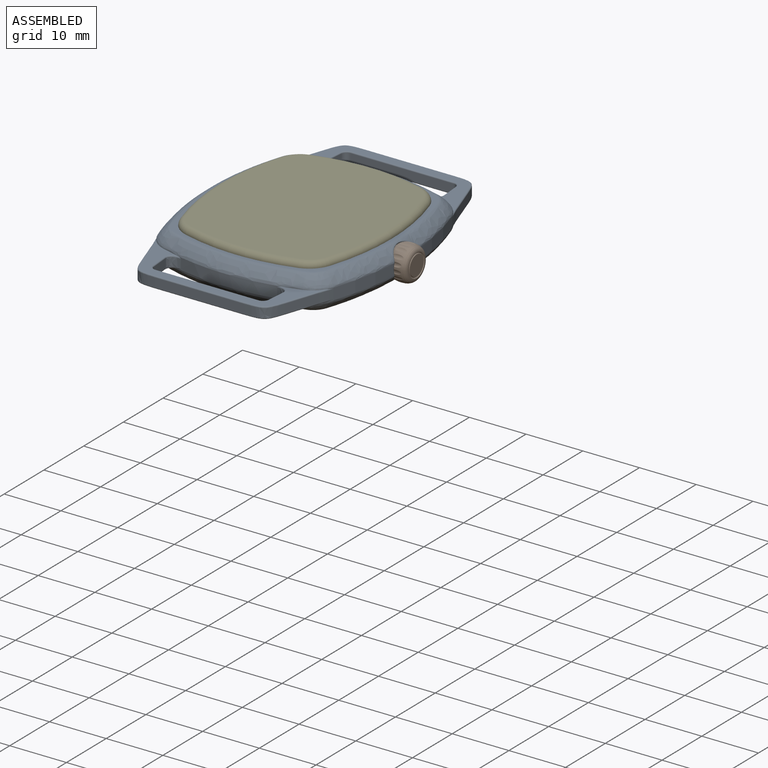
[diagram: assembled view]
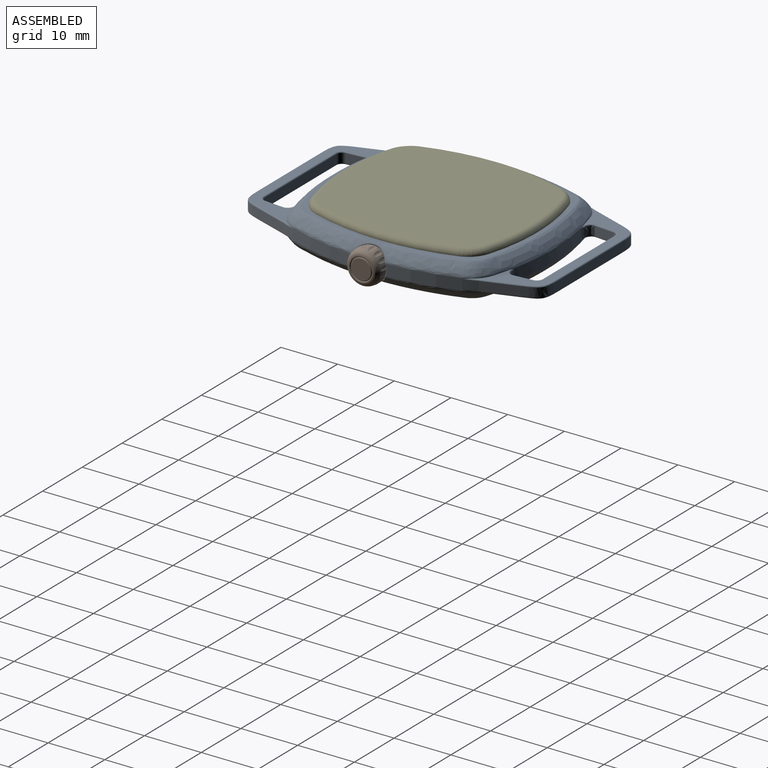
[diagram: assembled view, second angle]
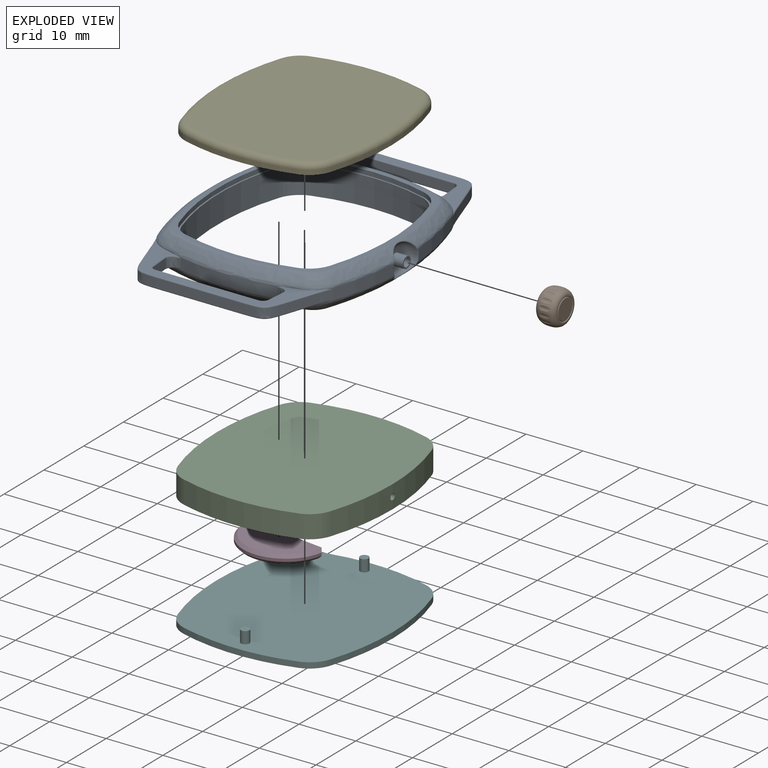
[diagram: exploded view]
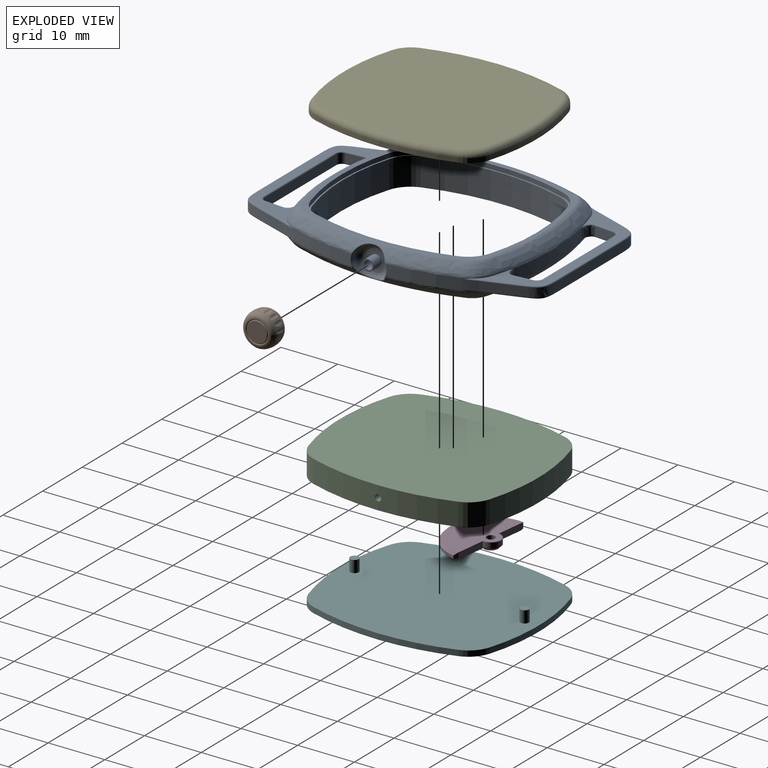
[diagram: exploded view, second angle]
ASSEMBLY  parts=6 mates=5
PART A: 142 faces, bbox 36x53x6 mm
  f0: cylinder r=40mm len=24.66mm, axis (0,0,-1), area 5mm2, adj f4,f5,f121,f133
  f1: cylinder r=34mm len=19.45mm, axis (0,0,-1), area 3.9mm2, adj f4,f7,f121,f133
  f2: cylinder r=34mm len=19.45mm, axis (0,0,-1), area 3.9mm2, adj f5,f6,f121,f133
  f3: cylinder r=40mm len=24.66mm, axis (0,0,-1), area 5mm2, adj f6,f7,f121,f133
  f4: cylinder r=5mm len=3.33mm, axis (0,0,1), area 1mm2, adj f0,f1,f121,f133
  f5: cylinder r=5mm len=3.33mm, axis (0,0,1), area 1mm2, adj f0,f2,f121,f133
  f6: cylinder r=5mm len=3.33mm, axis (0,0,1), area 1mm2, adj f2,f3,f121,f133
  f7: cylinder r=5mm len=3.33mm, axis (0,0,1), area 1mm2, adj f1,f3,f121,f133
  f8: cylinder r=46mm len=14.12mm, axis (0,0,-1), area 27.9mm2, adj f10,f11,f19,f38,f45,f68,f101,f141
  f9: cylinder r=46mm len=14.12mm, axis (0,0,-1), area 27.9mm2, adj f10,f11,f31,f37,f44,f82,f89,f138
  f10: bspline ~29.84x4.38mm, area 75.3mm2, adj f8,f9,f16,f37,f38,f139
  f11: bspline ~29.84x4.38mm, area 75.3mm2, adj f8,f9,f12,f44,f45,f140
  f12: plane 36.02x32.02mm, normal (0,0,-1), area 66.4mm2, adj f11,f44,f45,f46,f47,f48,f49,f50
  f13: cylinder r=40mm len=18.37mm, axis (0,0,-1), area 34.5mm2, adj f26,f30,f39,f46,f103,f107,f110,f114
  f14: cylinder r=40mm len=18.37mm, axis (0,0,-1), area 34.5mm2, adj f20,f24,f40,f47,f61,f65,f75,f79
  f15: cylinder r=46mm len=34.44mm, axis (0,0,-1), area 68.6mm2, adj f17,f33,f41,f42,f43,f48,f49,f50
  f16: plane 36.02x32.02mm, normal (0,0,1), area 95.3mm2, adj f10,f37,f38,f39,f40,f41,f42,f43
  f17: plane 5.89x2mm, normal (-0.95,-0.32,0), area 10mm2, adj f15,f58,f74,f97
  f18: plane 15.84x1.6mm, normal (0,-1,0), area 25.3mm2, adj f57,f58,f71,f99
  f19: plane 5.89x2mm, normal (0.95,-0.32,0), area 10mm2, adj f8,f57,f69,f102
  f20: extruded ~1.86x1.6mm, area 3.9mm2, adj f14,f21,f65,f79
  f21: plane 3.35x1.6mm, normal (-1,0.08,0), area 5.4mm2, adj f20,f56,f67,f81
  f22: plane 18.16x1.6mm, normal (0,1,0), area 29.1mm2, adj f55,f56,f64,f78
  f23: plane 3.35x1.6mm, normal (1,0.08,0), area 5.4mm2, adj f24,f55,f62,f76
  f24: extruded ~1.86x1.6mm, area 3.9mm2, adj f14,f23,f61,f75
  f25: plane 29.76x10.12mm, normal (0,0,1), area 73.3mm2, adj f38,f40,f42,f61,f62,f63,f64,f65
  f26: extruded ~1.86x1.6mm, area 3.9mm2, adj f13,f27,f103,f110
  f27: plane 3.35x1.6mm, normal (1,-0.08,0), area 5.4mm2, adj f26,f53,f104,f111
  f28: plane 18.16x1.6mm, normal (0,-1,0), area 29.1mm2, adj f53,f54,f106,f113
  f29: plane 3.35x1.6mm, normal (-1,-0.08,0), area 5.4mm2, adj f30,f54,f109,f116
  f30: extruded ~1.86x1.6mm, area 3.9mm2, adj f13,f29,f107,f114
  f31: plane 5.89x2mm, normal (0.95,0.32,0), area 10mm2, adj f9,f59,f83,f90
  f32: plane 15.84x1.6mm, normal (0,1,0), area 25.3mm2, adj f59,f60,f85,f92
  f33: plane 5.89x2mm, normal (-0.95,0.32,0), area 10mm2, adj f15,f60,f88,f95
  f34: plane 29.76x10.12mm, normal (0,0,1), area 73.3mm2, adj f37,f39,f41,f82,f83,f84,f85,f86
  f35: plane 29.76x10.12mm, normal (0,0,-1), area 73.3mm2, adj f44,f46,f48,f89,f90,f91,f92,f93
  f36: plane 29.76x10.12mm, normal (0,0,-1), area 73.3mm2, adj f45,f47,f49,f68,f69,f70,f71,f72
  f37: bspline ~3.81x3.78mm, area 11.4mm2, adj f9,f10,f16,f34,f39,f82
  f38: bspline ~3.81x3.78mm, area 11.4mm2, adj f8,f10,f16,f25,f40,f101
  f39: bspline ~24.65x3.85mm, area 71.8mm2, adj f13,f16,f34,f37,f41
  f40: bspline ~24.65x3.85mm, area 71.8mm2, adj f14,f16,f25,f38,f42
  f41: bspline ~3.81x3.78mm, area 11.4mm2, adj f15,f16,f34,f39,f43,f87
  f42: bspline ~3.81x3.78mm, area 11.4mm2, adj f15,f16,f25,f40,f43,f96
  f43: bspline ~29.84x4.38mm, area 87.3mm2, adj f15,f16,f41,f42
  f44: bspline ~3.81x3.78mm, area 11.4mm2, adj f9,f11,f12,f35,f46,f89
  f45: bspline ~3.81x3.78mm, area 11.4mm2, adj f8,f11,f12,f36,f47,f68
  f46: bspline ~24.65x3.85mm, area 71.8mm2, adj f12,f13,f35,f44,f48
  f47: bspline ~24.65x3.85mm, area 71.8mm2, adj f12,f14,f36,f45,f49
  f48: bspline ~3.81x3.78mm, area 11.4mm2, adj f12,f15,f35,f46,f50,f94
  f49: bspline ~3.81x3.78mm, area 11.4mm2, adj f12,f15,f36,f47,f50,f73
  f50: bspline ~29.84x4.38mm, area 87.3mm2, adj f12,f15,f48,f49
  f51: plane 3x3mm, normal (1,0,0), area 3.9mm2, adj f52,f127
  f52: revolved ~5.96x5.96mm, area 26.3mm2, adj f51,f138,f139,f140,f141
  f53: cylinder r=1mm len=1.6mm, axis (0,0,1), area 2.4mm2, adj f27,f28,f105,f112
  f54: cylinder r=1mm len=1.6mm, axis (0,0,1), area 2.4mm2, adj f28,f29,f108,f115
  f55: cylinder r=1mm len=1.6mm, axis (0,0,1), area 2.4mm2, adj f22,f23,f63,f77
  f56: cylinder r=1mm len=1.6mm, axis (0,0,-1), area 2.4mm2, adj f21,f22,f66,f80
  f57: bspline ~4.73x3.39mm, area 10.6mm2, adj f18,f19,f70,f100
  f58: bspline ~4.73x3.39mm, area 10.6mm2, adj f17,f18,f72,f98
  f59: bspline ~4.73x3.39mm, area 10.6mm2, adj f31,f32,f84,f91
  f60: bspline ~4.73x3.39mm, area 10.6mm2, adj f32,f33,f86,f93
  f61: bspline ~2.49x1.42mm, area 0.7mm2, adj f14,f24,f25,f62
  f62: cylinder r=0.2mm len=3.38mm, axis (0.08,-1,0), area 1.1mm2, adj f23,f25,f61,f63
  f63: torus R=1.2mm, axis (0,0,1), area 0.5mm2, adj f25,f55,f62,f64
  f64: cylinder r=0.2mm len=18.16mm, axis (1,0,0), area 5.7mm2, adj f22,f25,f63,f66
  f65: bspline ~2.49x1.42mm, area 0.7mm2, adj f14,f20,f25,f67
  f66: torus R=1.2mm, axis (0,0,1), area 0.5mm2, adj f25,f56,f64,f67
  f67: cylinder r=0.2mm len=3.38mm, axis (0.08,1,0), area 1.1mm2, adj f21,f25,f65,f66
  f68: torus R=45.8mm, axis (0,0,1), area 0.5mm2, adj f8,f36,f45,f69
  f69: cylinder r=0.2mm len=5.96mm, axis (0.32,0.95,0), area 2mm2, adj f19,f36,f68,f70
  f70: bspline ~7.45x5.4mm, area 2mm2, adj f36,f57,f69,f71
  f71: cylinder r=0.2mm len=15.84mm, axis (1,0,0), area 5mm2, adj f18,f36,f70,f72
  f72: bspline ~7.45x5.4mm, area 2mm2, adj f36,f58,f71,f74
  f73: torus R=45.8mm, axis (0,0,1), area 0.5mm2, adj f15,f36,f49,f74
  f74: cylinder r=0.2mm len=5.96mm, axis (0.32,-0.95,0), area 2mm2, adj f17,f36,f72,f73
  f75: bspline ~2.49x1.42mm, area 0.7mm2, adj f14,f24,f36,f76
  f76: cylinder r=0.2mm len=3.38mm, axis (-0.08,1,0), area 1.1mm2, adj f23,f36,f75,f77
  f77: torus R=1.2mm, axis (0,0,1), area 0.5mm2, adj f36,f55,f76,f78
  f78: cylinder r=0.2mm len=18.16mm, axis (-1,0,0), area 5.7mm2, adj f22,f36,f77,f80
  f79: bspline ~2.49x1.42mm, area 0.7mm2, adj f14,f20,f36,f81
  f80: torus R=1.2mm, axis (0,0,1), area 0.5mm2, adj f36,f56,f78,f81
  f81: cylinder r=0.2mm len=3.38mm, axis (-0.08,-1,0), area 1.1mm2, adj f21,f36,f79,f80
  f82: torus R=45.8mm, axis (0,0,1), area 0.5mm2, adj f9,f34,f37,f83
  f83: cylinder r=0.2mm len=5.96mm, axis (0.32,-0.95,0), area 2mm2, adj f31,f34,f82,f84
  f84: bspline ~7.45x5.4mm, area 2mm2, adj f34,f59,f83,f85
  f85: cylinder r=0.2mm len=15.84mm, axis (1,0,0), area 5mm2, adj f32,f34,f84,f86
  f86: bspline ~7.45x5.4mm, area 2mm2, adj f34,f60,f85,f88
  f87: torus R=45.8mm, axis (0,0,1), area 0.5mm2, adj f15,f34,f41,f88
  f88: cylinder r=0.2mm len=5.96mm, axis (0.32,0.95,0), area 2mm2, adj f33,f34,f86,f87
  f89: torus R=45.8mm, axis (0,0,1), area 0.5mm2, adj f9,f35,f44,f90
  f90: cylinder r=0.2mm len=5.96mm, axis (-0.32,0.95,0), area 2mm2, adj f31,f35,f89,f91
  f91: bspline ~7.45x5.4mm, area 2mm2, adj f35,f59,f90,f92
  f92: cylinder r=0.2mm len=15.84mm, axis (-1,0,0), area 5mm2, adj f32,f35,f91,f93
  f93: bspline ~7.45x5.4mm, area 2mm2, adj f35,f60,f92,f95
  f94: torus R=45.8mm, axis (0,0,1), area 0.5mm2, adj f15,f35,f48,f95
  f95: cylinder r=0.2mm len=5.96mm, axis (-0.32,-0.95,0), area 2mm2, adj f33,f35,f93,f94
  f96: torus R=45.8mm, axis (0,0,1), area 0.5mm2, adj f15,f25,f42,f97
  f97: cylinder r=0.2mm len=5.96mm, axis (-0.32,0.95,0), area 2mm2, adj f17,f25,f96,f98
  f98: bspline ~7.45x5.4mm, area 2mm2, adj f25,f58,f97,f99
  f99: cylinder r=0.2mm len=15.84mm, axis (-1,0,0), area 5mm2, adj f18,f25,f98,f100
  f100: bspline ~7.45x5.4mm, area 2mm2, adj f25,f57,f99,f102
  f101: torus R=45.8mm, axis (0,0,1), area 0.5mm2, adj f8,f25,f38,f102
  f102: cylinder r=0.2mm len=5.96mm, axis (-0.32,-0.95,0), area 2mm2, adj f19,f25,f100,f101
  f103: bspline ~2.49x1.42mm, area 0.7mm2, adj f13,f26,f34,f104
  f104: cylinder r=0.2mm len=3.38mm, axis (-0.08,-1,0), area 1.1mm2, adj f27,f34,f103,f105
  f105: torus R=1.2mm, axis (0,0,1), area 0.5mm2, adj f34,f53,f104,f106
  f106: cylinder r=0.2mm len=18.16mm, axis (-1,0,0), area 5.7mm2, adj f28,f34,f105,f108
  f107: bspline ~2.49x1.42mm, area 0.7mm2, adj f13,f30,f34,f109
  f108: torus R=1.2mm, axis (0,0,1), area 0.5mm2, adj f34,f54,f106,f109
  f109: cylinder r=0.2mm len=3.38mm, axis (-0.08,1,0), area 1.1mm2, adj f29,f34,f107,f108
  f110: bspline ~2.49x1.42mm, area 0.7mm2, adj f13,f26,f35,f111
  f111: cylinder r=0.2mm len=3.38mm, axis (0.08,1,0), area 1.1mm2, adj f27,f35,f110,f112
  f112: torus R=1.2mm, axis (0,0,1), area 0.5mm2, adj f35,f53,f111,f113
  f113: cylinder r=0.2mm len=18.16mm, axis (1,0,0), area 5.7mm2, adj f28,f35,f112,f115
  f114: bspline ~2.49x1.42mm, area 0.7mm2, adj f13,f30,f35,f116
  f115: torus R=1.2mm, axis (0,0,1), area 0.5mm2, adj f35,f54,f113,f116
  f116: cylinder r=0.2mm len=3.38mm, axis (0.08,-1,0), area 1.1mm2, adj f29,f35,f114,f115
  f117: cylinder r=40.5mm len=25.09mm, axis (0,0,1), area 20.4mm2, adj f16,f121,f122,f125
  f118: cylinder r=34.5mm len=19.89mm, axis (0,0,1), area 16.1mm2, adj f16,f121,f122,f123
  f119: cylinder r=40.5mm len=25.09mm, axis (0,0,1), area 20.4mm2, adj f16,f121,f123,f124
  f120: cylinder r=34.5mm len=19.89mm, axis (0,0,1), area 16.1mm2, adj f16,f121,f124,f125
  f121: plane 34.5x30.5mm, normal (0,0,1), area 28.4mm2, adj f0,f1,f2,f3,f4,f5,f6,f7
  f122: cylinder r=5mm len=3.31mm, axis (0,0,-1), area 3.9mm2, adj f16,f117,f118,f121
  f123: cylinder r=5mm len=3.31mm, axis (0,0,-1), area 3.9mm2, adj f16,f118,f119,f121
  f124: cylinder r=5mm len=3.31mm, axis (0,0,-1), area 3.9mm2, adj f16,f119,f120,f121
  f125: cylinder r=5mm len=3.31mm, axis (0,0,-1), area 3.9mm2, adj f16,f117,f120,f121
  f126: cylinder r=0.75mm len=2.5mm, axis (-1,0,0), area 11.8mm2, adj f128,f132
  f127: cylinder r=1mm len=2mm, axis (-1,0,0), area 12.6mm2, adj f51,f128
  f128: plane 2x2mm, normal (1,0,0), area 1.4mm2, adj f126,f127
  f129: cylinder r=35mm len=20.33mm, axis (0,0,-1), area 103.1mm2, adj f12,f133,f134,f137
  f130: cylinder r=41mm len=25.53mm, axis (0,0,-1), area 129.8mm2, adj f12,f133,f134,f135
  f131: cylinder r=35mm len=20.33mm, axis (0,0,-1), area 103.1mm2, adj f12,f133,f135,f136
  f132: cylinder r=41mm len=25.53mm, axis (0,0,-1), area 128mm2, adj f12,f126,f133,f136,f137
  f133: plane 35x31mm, normal (0,0,-1), area 57.3mm2, adj f0,f1,f2,f3,f4,f5,f6,f7
  f134: cylinder r=5mm len=5mm, axis (0,0,1), area 24mm2, adj f12,f129,f130,f133
  f135: cylinder r=5mm len=5mm, axis (0,0,1), area 24mm2, adj f12,f130,f131,f133
  f136: cylinder r=5mm len=5mm, axis (0,0,1), area 24mm2, adj f12,f131,f132,f133
  f137: cylinder r=5mm len=5mm, axis (0,0,1), area 24mm2, adj f12,f129,f132,f133
  f138: bspline ~2x0.47mm, area 0.8mm2, adj f9,f52,f139,f140
  f139: bspline ~6.19x1.98mm, area 4.1mm2, adj f10,f52,f138,f141
  f140: bspline ~6.19x1.98mm, area 4.1mm2, adj f11,f52,f138,f141
  f141: bspline ~2x0.47mm, area 0.8mm2, adj f8,f52,f139,f140
PART B: 25 faces, bbox 3.8x6x6 mm
  f0: revolved ~5.98x5.98mm, area 35.8mm2, adj f1,f2,f8,f9,f10,f11,f12,f13
  f1: revolved ~5.98x5.98mm, area 28.7mm2, adj f0,f8,f9,f10,f11,f12,f13,f14
  f2: plane 3x3mm, normal (-1,0,0), area 3.9mm2, adj f0,f3
  f3: cylinder r=1mm len=2mm, axis (-1,0,0), area 12.6mm2, adj f2,f4
  f4: plane 2x2mm, normal (-1,0,0), area 2.5mm2, adj f3,f5
  f5: cylinder r=0.45mm len=0.9mm, axis (-1,0,0), area 1.4mm2, adj f4,f6
  f6: plane 0.9x0.9mm, normal (-1,0,0), area 0.6mm2, adj f5
  f7: plane 3.5x3.5mm, normal (1,0,0), area 9.6mm2, adj f24
  f8: cylinder r=0.73mm len=2.01mm, axis (-1,0,0), area 1.3mm2, adj f0,f1
  f9: cylinder r=0.73mm len=2.01mm, axis (-1,0,0), area 1.3mm2, adj f0,f1
  f10: cylinder r=0.73mm len=2.01mm, axis (-1,0,0), area 1.3mm2, adj f0,f1
  f11: cylinder r=0.73mm len=2.01mm, axis (-1,0,0), area 1.3mm2, adj f0,f1
  f12: cylinder r=0.73mm len=2.01mm, axis (-1,0,0), area 1.3mm2, adj f0,f1
  f13: cylinder r=0.73mm len=2.01mm, axis (-1,0,0), area 1.3mm2, adj f0,f1
  f14: cylinder r=0.73mm len=2.01mm, axis (-1,0,0), area 1.3mm2, adj f0,f1
  f15: cylinder r=0.73mm len=2.01mm, axis (-1,0,0), area 1.3mm2, adj f0,f1
  f16: cylinder r=0.73mm len=2.01mm, axis (-1,0,0), area 1.3mm2, adj f0,f1
  f17: cylinder r=0.73mm len=2.01mm, axis (-1,0,0), area 1.3mm2, adj f0,f1
  f18: cylinder r=0.73mm len=2.01mm, axis (-1,0,0), area 1.3mm2, adj f0,f1
  f19: cylinder r=0.73mm len=2.01mm, axis (-1,0,0), area 1.3mm2, adj f0,f1
  f20: cylinder r=0.73mm len=2.01mm, axis (-1,0,0), area 1.3mm2, adj f0,f1
  f21: cylinder r=0.73mm len=2.01mm, axis (-1,0,0), area 1.3mm2, adj f0,f1
  f22: cylinder r=0.73mm len=2.01mm, axis (-1,0,0), area 1.3mm2, adj f0,f1
  f23: cylinder r=0.73mm len=2.01mm, axis (-1,0,0), area 1.3mm2, adj f0,f1
  f24: torus R=1.88mm, axis (1,0,0), area 4.6mm2, adj f1,f7
PART C: 21 faces, bbox 31x35x4 mm
  f0: cylinder r=41mm len=25.53mm, axis (0,0,-1), area 103.8mm2, adj f4,f5,f6,f9
  f1: cylinder r=35mm len=20.33mm, axis (0,0,-1), area 82.5mm2, adj f4,f5,f6,f7
  f2: cylinder r=41mm len=25.53mm, axis (0,0,-1), area 102.9mm2, adj f4,f5,f7,f8,f10
  f3: cylinder r=35mm len=20.33mm, axis (0,0,-1), area 82.5mm2, adj f4,f5,f8,f9
  f4: plane 35x31mm, normal (0,0,1), area 957.7mm2, adj f0,f1,f2,f3,f6,f7,f8,f9
  f5: plane 35x31mm, normal (0,0,-1), area 753.1mm2, adj f0,f1,f2,f3,f6,f7,f8,f9
  f6: cylinder r=5mm len=4mm, axis (0,0,-1), area 19.2mm2, adj f0,f1,f4,f5
  f7: cylinder r=5mm len=4mm, axis (0,0,-1), area 19.2mm2, adj f1,f2,f4,f5
  f8: cylinder r=5mm len=4mm, axis (0,0,-1), area 19.2mm2, adj f2,f3,f4,f5
  f9: cylinder r=5mm len=4mm, axis (0,0,-1), area 19.2mm2, adj f0,f3,f4,f5
  f10: cylinder r=0.55mm len=15.5mm, axis (1,0,0), area 53.6mm2, adj f2,f11
  f11: plane 1.1x1.1mm, normal (1,0,0), area 1mm2, adj f10
  f12: cylinder r=0.75mm len=2.1mm, axis (0,0,-1), area 9.9mm2, adj f5,f13
  f13: plane 1.5x1.5mm, normal (0,0,-1), area 1.8mm2, adj f12
  f14: cylinder r=0.75mm len=2.1mm, axis (0,0,-1), area 9.9mm2, adj f5,f15
  f15: plane 1.5x1.5mm, normal (0,0,-1), area 1.8mm2, adj f14
  f16: cylinder r=0.75mm len=2.5mm, axis (0,0,-1), area 11.8mm2, adj f18,f19
  f17: cylinder r=7.5mm len=15mm, axis (0,0,-1), area 94.2mm2, adj f18,f20
  f18: plane 15x15mm, normal (0,0,-1), area 174.9mm2, adj f16,f17
  f19: plane 1.5x1.5mm, normal (0,0,-1), area 1.8mm2, adj f16
  f20: cone r=7.5mm half-angle=45deg, axis (0,0,-1), area 34.4mm2, adj f5,f17
PART D: 16 faces, bbox 15.1x9.3x1.6 mm
  f0: cylinder r=1.75mm len=3.5mm, axis (0,0,-1), area 5.5mm2, adj f1,f4,f5,f7
  f1: plane 5.23x1mm, normal (0,1,0), area 5.2mm2, adj f0,f5,f8,f13
  f2: cylinder r=7.5mm len=14.96mm, axis (0,0,-1), area 11.2mm2, adj f10,f13,f14,f15
  f3: cylinder r=0.75mm len=1.5mm, axis (0,0,-1), area 7.1mm2, adj f5,f6
  f4: plane 5.23x1mm, normal (0,1,0), area 5.2mm2, adj f0,f5,f9,f14
  f5: plane 14x8.75mm, normal (0,0,1), area 80mm2, adj f0,f1,f3,f4,f13,f14,f15
  f6: plane 13.96x8.25mm, normal (0,0,-1), area 71.9mm2, adj f3,f7,f8,f9,f10
  f7: cone r=1.75mm half-angle=45deg, axis (0,0,1), area 3.7mm2, adj f0,f6,f8,f9
  f8: plane 5.93x0.59mm, normal (0,0.71,-0.71), area 3.9mm2, adj f1,f6,f7,f11
  f9: plane 5.93x0.59mm, normal (0,0.71,-0.71), area 3.9mm2, adj f4,f6,f7,f12
  f10: cone r=7.5mm half-angle=45deg, axis (0,0,1), area 15.4mm2, adj f2,f6,f11,f12
  f11: plane 0.54x0.5mm, normal (-0.6,0.56,-0.56), area 0.2mm2, adj f8,f10,f13
  f12: plane 0.54x0.5mm, normal (0.6,0.56,-0.56), area 0.2mm2, adj f9,f10,f14
  f13: plane 1.02x0.56mm, normal (-0.73,0.68,0), area 0.6mm2, adj f1,f2,f5,f11,f15
  f14: plane 1.02x0.56mm, normal (0.73,0.68,0), area 0.6mm2, adj f2,f4,f5,f12,f15
  f15: cone r=7mm half-angle=45deg, axis (0,0,-1), area 15.7mm2, adj f2,f5,f13,f14
PART E: 18 faces, bbox 37.2x40.2x1.8 mm
  f0: cylinder r=40.5mm len=25.09mm, axis (0,0,-1), area 20.4mm2, adj f5,f6,f9,f10
  f1: cylinder r=34.5mm len=19.89mm, axis (0,0,-1), area 16.1mm2, adj f5,f6,f7,f13
  f2: cylinder r=40.5mm len=25.09mm, axis (0,0,-1), area 20.4mm2, adj f5,f7,f8,f17
  f3: cylinder r=34.5mm len=19.89mm, axis (0,0,-1), area 16.1mm2, adj f5,f8,f9,f14
  f4: plane 32.5x28.5mm, normal (0,0,1), area 821.3mm2, adj f10,f11,f12,f13,f14,f15,f16,f17
  f5: plane 34.5x30.5mm, normal (0,0,-1), area 928.8mm2, adj f0,f1,f2,f3,f6,f7,f8,f9
  f6: cylinder r=5mm len=3.31mm, axis (0,0,-1), area 3.9mm2, adj f0,f1,f5,f11
  f7: cylinder r=5mm len=3.31mm, axis (0,0,-1), area 3.9mm2, adj f1,f2,f5,f15
  f8: cylinder r=5mm len=3.31mm, axis (0,0,-1), area 3.9mm2, adj f2,f3,f5,f16
  f9: cylinder r=5mm len=3.31mm, axis (0,0,-1), area 3.9mm2, adj f0,f3,f5,f12
  f10: torus R=39.5mm, axis (0,0,1), area 39.7mm2, adj f0,f4,f11,f12
  f11: torus R=4mm, axis (0,0,1), area 7mm2, adj f4,f6,f10,f13
  f12: torus R=4mm, axis (0,0,1), area 7mm2, adj f4,f9,f10,f14
  f13: torus R=33.5mm, axis (0,0,1), area 31.4mm2, adj f1,f4,f11,f15
  f14: torus R=33.5mm, axis (0,0,1), area 31.4mm2, adj f3,f4,f12,f16
  f15: torus R=4mm, axis (0,0,1), area 7mm2, adj f4,f7,f13,f17
  f16: torus R=4mm, axis (0,0,1), area 7mm2, adj f4,f8,f14,f17
  f17: torus R=39.5mm, axis (0,0,1), area 39.7mm2, adj f2,f4,f15,f16
PART F: 14 faces, bbox 31x35x3.1 mm
  f0: cylinder r=41mm len=25.53mm, axis (0,0,-1), area 26mm2, adj f4,f5,f6,f9
  f1: cylinder r=35mm len=20.33mm, axis (0,0,-1), area 20.6mm2, adj f4,f5,f6,f7
  f2: cylinder r=41mm len=25.53mm, axis (0,0,-1), area 26mm2, adj f4,f5,f7,f8
  f3: cylinder r=35mm len=20.33mm, axis (0,0,-1), area 20.6mm2, adj f4,f5,f8,f9
  f4: plane 35x31mm, normal (0,0,1), area 954.1mm2, adj f0,f1,f2,f3,f6,f7,f8,f9
  f5: plane 35x31mm, normal (0,0,-1), area 957.7mm2, adj f0,f1,f2,f3,f6,f7,f8,f9
  f6: cylinder r=5mm len=3.3mm, axis (0,0,-1), area 4.8mm2, adj f0,f1,f4,f5
  f7: cylinder r=5mm len=3.3mm, axis (0,0,-1), area 4.8mm2, adj f1,f2,f4,f5
  f8: cylinder r=5mm len=3.3mm, axis (0,0,-1), area 4.8mm2, adj f2,f3,f4,f5
  f9: cylinder r=5mm len=3.3mm, axis (0,0,-1), area 4.8mm2, adj f0,f3,f4,f5
  f10: cylinder r=0.75mm len=2.1mm, axis (0,0,-1), area 9.9mm2, adj f4,f11
  f11: plane 1.5x1.5mm, normal (0,0,1), area 1.8mm2, adj f10
  f12: cylinder r=0.75mm len=2.1mm, axis (0,0,-1), area 9.9mm2, adj f4,f13
  f13: plane 1.5x1.5mm, normal (0,0,1), area 1.8mm2, adj f12
PLACE A at identity fixed
PLACE B rot(axis=(-1,0,0),93.6deg) t=(16,0,3)mm
PLACE C t=(0,0,1)mm
PLACE D rot(axis=(0,0,-1),7.2deg) t=(-6.5,4.5,1)mm
PLACE E t=(0,0,5.2)mm
PLACE F at identity
MATE revolute B.f24 <-> A.f126  axis (-1,0,0) through (16,0,3)mm
MATE revolute D.f3 <-> C.f16  axis (0,0,-1) through (-6.5,4.5,1)mm
MATE fastened C.f4 <-> A.f133  axis (0,0,1) through (-13.46,12.76,5)mm
MATE fastened E.f5 <-> A.f121  axis (0,0,1) through (-13.26,12.55,5.2)mm
MATE fastened F.f12 <-> C.f14  axis (0,0,1) through (0,-15,3.1)mm
